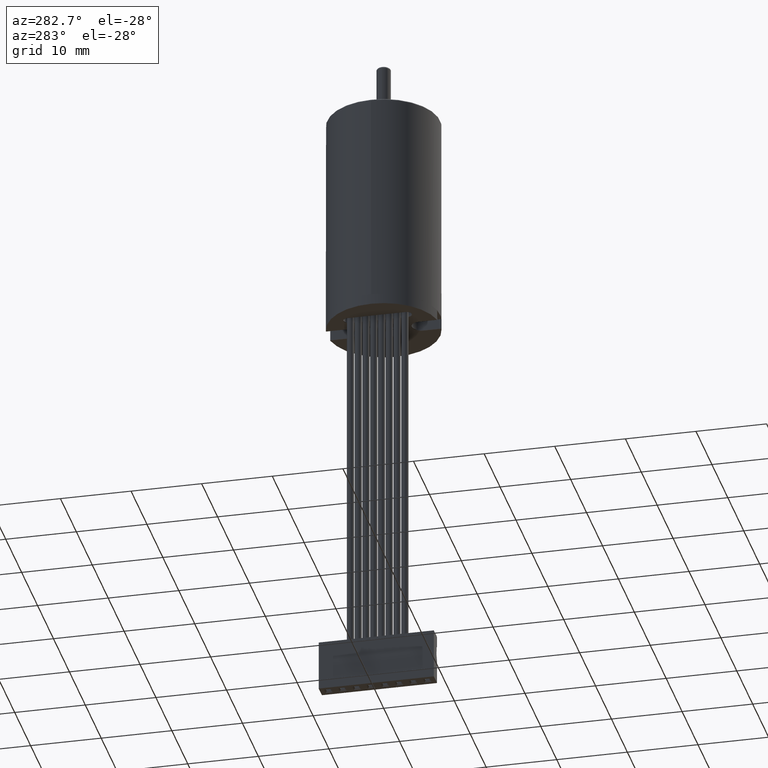
[diagram: clean part render]
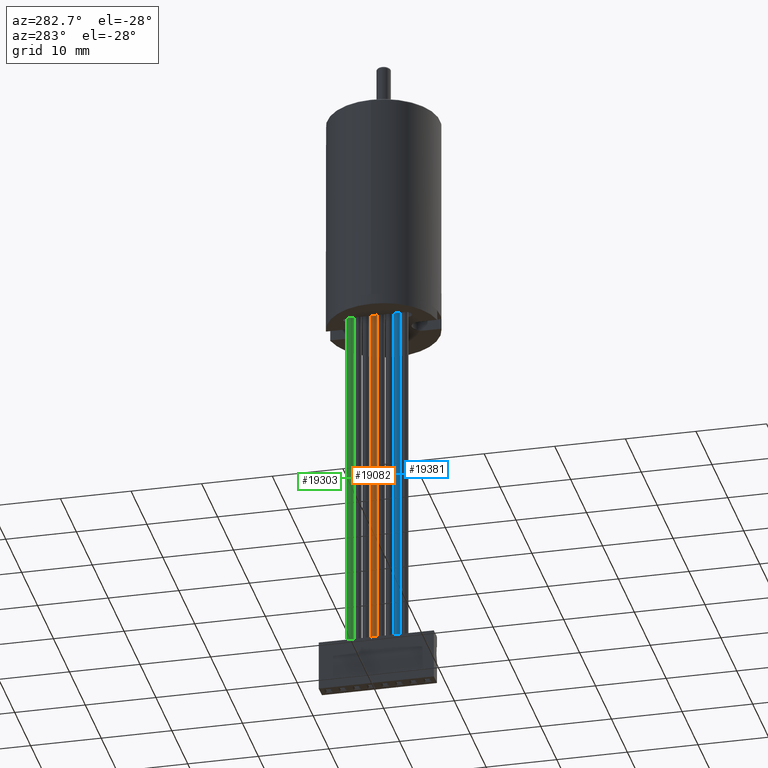
[diagram: same view with three faces highlighted in distinct colors, each labeled with its STEP entity id]
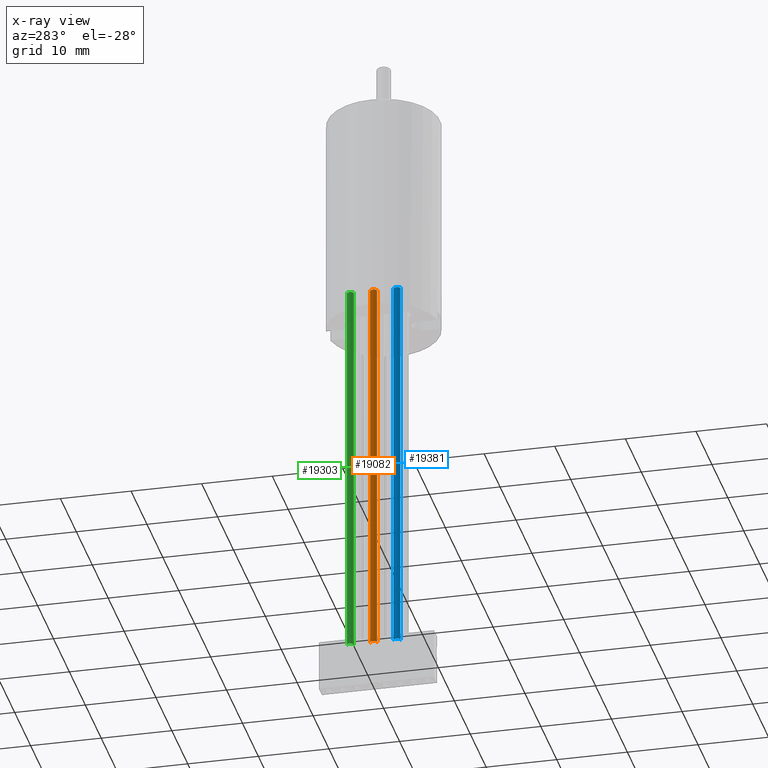
[diagram: x-ray of the same camera — body ghosted, the three highlighted faces saturated]
A machine part, auxiliary view with three faces highlighted in distinct colors.
The next image is the same camera in x-ray (body ghosted, the three faces saturated) — at least one of them is partly hidden behind the body in this view.
Their STEP definitions:

[orange] entity #19082 — the highlighted cylindrical surface (edge-blend (fillet) strip) has radius 0.5 mm, axis along (0, 0, -1).
#17878=CARTESIAN_POINT('',(1.2E0,3.8E0,5.5E-1));
#17879=DIRECTION('',(1.E0,0.E0,0.E0));
#17880=DIRECTION('',(0.E0,0.E0,-1.E0));
#17881=AXIS2_PLACEMENT_3D('',#17878,#17879,#17880);
#18036=DIRECTION('',(1.E0,0.E0,0.E0));
#18037=VECTOR('',#18036,5.5E1);
#18038=CARTESIAN_POINT('',(1.2E0,3.8E0,5.E-2));
#18039=LINE('',#18038,#18037);
#18040=DIRECTION('',(1.E0,0.E0,0.E0));
#18041=VECTOR('',#18040,5.5E1);
#18042=CARTESIAN_POINT('',(1.2E0,3.8E0,1.05E0));
#18043=LINE('',#18042,#18041);
#18044=CARTESIAN_POINT('',(5.62E1,3.8E0,5.5E-1));
#18045=DIRECTION('',(1.E0,0.E0,0.E0));
#18046=DIRECTION('',(0.E0,0.E0,-1.E0));
#18047=AXIS2_PLACEMENT_3D('',#18044,#18045,#18046);
#18604=CARTESIAN_POINT('',(5.62E1,3.8E0,5.E-2));
#18605=CARTESIAN_POINT('',(5.62E1,3.8E0,1.05E0));
#18606=VERTEX_POINT('',#18604);
#18607=VERTEX_POINT('',#18605);
#18636=CARTESIAN_POINT('',(1.2E0,3.8E0,5.E-2));
#18637=CARTESIAN_POINT('',(1.2E0,3.8E0,1.05E0));
#18638=VERTEX_POINT('',#18636);
#18639=VERTEX_POINT('',#18637);
#19068=CARTESIAN_POINT('',(0.E0,3.8E0,5.5E-1));
#19069=DIRECTION('',(1.E0,0.E0,0.E0));
#19070=DIRECTION('',(0.E0,0.E0,-1.E0));
#19071=AXIS2_PLACEMENT_3D('',#19068,#19069,#19070);
#19072=CYLINDRICAL_SURFACE('',#19071,5.E-1);
#19073=ORIENTED_EDGE('',*,*,#18863,.F.);
#19075=ORIENTED_EDGE('',*,*,#19074,.T.);
#19077=ORIENTED_EDGE('',*,*,#19076,.T.);
#19079=ORIENTED_EDGE('',*,*,#19078,.F.);
#19080=EDGE_LOOP('',(#19073,#19075,#19077,#19079));
#19081=FACE_OUTER_BOUND('',#19080,.F.);
#19082=ADVANCED_FACE('',(#19081),#19072,.T.);
#17882=CIRCLE('',#17881,5.E-1);
#18048=CIRCLE('',#18047,5.E-1);
#18863=EDGE_CURVE('',#18638,#18639,#17882,.T.);
#19074=EDGE_CURVE('',#18638,#18606,#18039,.T.);
#19076=EDGE_CURVE('',#18606,#18607,#18048,.T.);
#19078=EDGE_CURVE('',#18639,#18607,#18043,.T.);

[blue] entity #19381 — the highlighted cylindrical surface (edge-blend (fillet) strip) has radius 0.5 mm, axis along (0, 0, -1).
#17938=CARTESIAN_POINT('',(1.2E0,3.8E0,-2.75E0));
#17939=DIRECTION('',(1.E0,0.E0,0.E0));
#17940=DIRECTION('',(0.E0,0.E0,-1.E0));
#17941=AXIS2_PLACEMENT_3D('',#17938,#17939,#17940);
#18104=CARTESIAN_POINT('',(5.62E1,3.8E0,-2.75E0));
#18105=DIRECTION('',(1.E0,0.E0,0.E0));
#18106=DIRECTION('',(0.E0,0.E0,-1.E0));
#18107=AXIS2_PLACEMENT_3D('',#18104,#18105,#18106);
#18244=DIRECTION('',(1.E0,0.E0,0.E0));
#18245=VECTOR('',#18244,5.5E1);
#18246=CARTESIAN_POINT('',(1.2E0,3.8E0,-3.25E0));
#18247=LINE('',#18246,#18245);
#18248=DIRECTION('',(1.E0,0.E0,0.E0));
#18249=VECTOR('',#18248,5.5E1);
#18250=CARTESIAN_POINT('',(1.2E0,3.8E0,-2.25E0));
#18251=LINE('',#18250,#18249);
#18628=CARTESIAN_POINT('',(5.62E1,3.8E0,-3.25E0));
#18629=CARTESIAN_POINT('',(5.62E1,3.8E0,-2.25E0));
#18630=VERTEX_POINT('',#18628);
#18631=VERTEX_POINT('',#18629);
#18660=CARTESIAN_POINT('',(1.2E0,3.8E0,-3.25E0));
#18661=CARTESIAN_POINT('',(1.2E0,3.8E0,-2.25E0));
#18662=VERTEX_POINT('',#18660);
#18663=VERTEX_POINT('',#18661);
#19368=CARTESIAN_POINT('',(0.E0,3.8E0,-2.75E0));
#19369=DIRECTION('',(1.E0,0.E0,0.E0));
#19370=DIRECTION('',(0.E0,0.E0,-1.E0));
#19371=AXIS2_PLACEMENT_3D('',#19368,#19369,#19370);
#19372=CYLINDRICAL_SURFACE('',#19371,5.E-1);
#19373=ORIENTED_EDGE('',*,*,#18899,.F.);
#19375=ORIENTED_EDGE('',*,*,#19374,.T.);
#19376=ORIENTED_EDGE('',*,*,#19207,.T.);
#19378=ORIENTED_EDGE('',*,*,#19377,.F.);
#19379=EDGE_LOOP('',(#19373,#19375,#19376,#19378));
#19380=FACE_OUTER_BOUND('',#19379,.F.);
#19381=ADVANCED_FACE('',(#19380),#19372,.T.);
#17942=CIRCLE('',#17941,5.E-1);
#18108=CIRCLE('',#18107,5.E-1);
#18899=EDGE_CURVE('',#18662,#18663,#17942,.T.);
#19207=EDGE_CURVE('',#18630,#18631,#18108,.T.);
#19374=EDGE_CURVE('',#18662,#18630,#18247,.T.);
#19377=EDGE_CURVE('',#18663,#18631,#18251,.T.);

[green] entity #19303 — the highlighted cylindrical surface (edge-blend (fillet) strip) has radius 0.5 mm, axis along (0, 0, -1).
#17908=CARTESIAN_POINT('',(1.2E0,3.8E0,3.85E0));
#17909=DIRECTION('',(1.E0,0.E0,0.E0));
#17910=DIRECTION('',(0.E0,0.E0,-1.E0));
#17911=AXIS2_PLACEMENT_3D('',#17908,#17909,#17910);
#18074=CARTESIAN_POINT('',(5.62E1,3.8E0,3.85E0));
#18075=DIRECTION('',(1.E0,0.E0,0.E0));
#18076=DIRECTION('',(0.E0,0.E0,-1.E0));
#18077=AXIS2_PLACEMENT_3D('',#18074,#18075,#18076);
#18220=DIRECTION('',(1.E0,0.E0,0.E0));
#18221=VECTOR('',#18220,5.5E1);
#18222=CARTESIAN_POINT('',(1.2E0,3.8E0,3.35E0));
#18223=LINE('',#18222,#18221);
#18224=DIRECTION('',(1.E0,0.E0,0.E0));
#18225=VECTOR('',#18224,5.5E1);
#18226=CARTESIAN_POINT('',(1.2E0,3.8E0,4.35E0));
#18227=LINE('',#18226,#18225);
#18616=CARTESIAN_POINT('',(5.62E1,3.8E0,3.35E0));
#18617=CARTESIAN_POINT('',(5.62E1,3.8E0,4.35E0));
#18618=VERTEX_POINT('',#18616);
#18619=VERTEX_POINT('',#18617);
#18648=CARTESIAN_POINT('',(1.2E0,3.8E0,3.35E0));
#18649=CARTESIAN_POINT('',(1.2E0,3.8E0,4.35E0));
#18650=VERTEX_POINT('',#18648);
#18651=VERTEX_POINT('',#18649);
#19290=CARTESIAN_POINT('',(0.E0,3.8E0,3.85E0));
#19291=DIRECTION('',(1.E0,0.E0,0.E0));
#19292=DIRECTION('',(0.E0,0.E0,-1.E0));
#19293=AXIS2_PLACEMENT_3D('',#19290,#19291,#19292);
#19294=CYLINDRICAL_SURFACE('',#19293,5.E-1);
#19295=ORIENTED_EDGE('',*,*,#18881,.F.);
#19297=ORIENTED_EDGE('',*,*,#19296,.T.);
#19298=ORIENTED_EDGE('',*,*,#19153,.T.);
#19300=ORIENTED_EDGE('',*,*,#19299,.F.);
#19301=EDGE_LOOP('',(#19295,#19297,#19298,#19300));
#19302=FACE_OUTER_BOUND('',#19301,.F.);
#19303=ADVANCED_FACE('',(#19302),#19294,.T.);
#17912=CIRCLE('',#17911,5.E-1);
#18078=CIRCLE('',#18077,5.E-1);
#18881=EDGE_CURVE('',#18650,#18651,#17912,.T.);
#19153=EDGE_CURVE('',#18618,#18619,#18078,.T.);
#19296=EDGE_CURVE('',#18650,#18618,#18223,.T.);
#19299=EDGE_CURVE('',#18651,#18619,#18227,.T.);